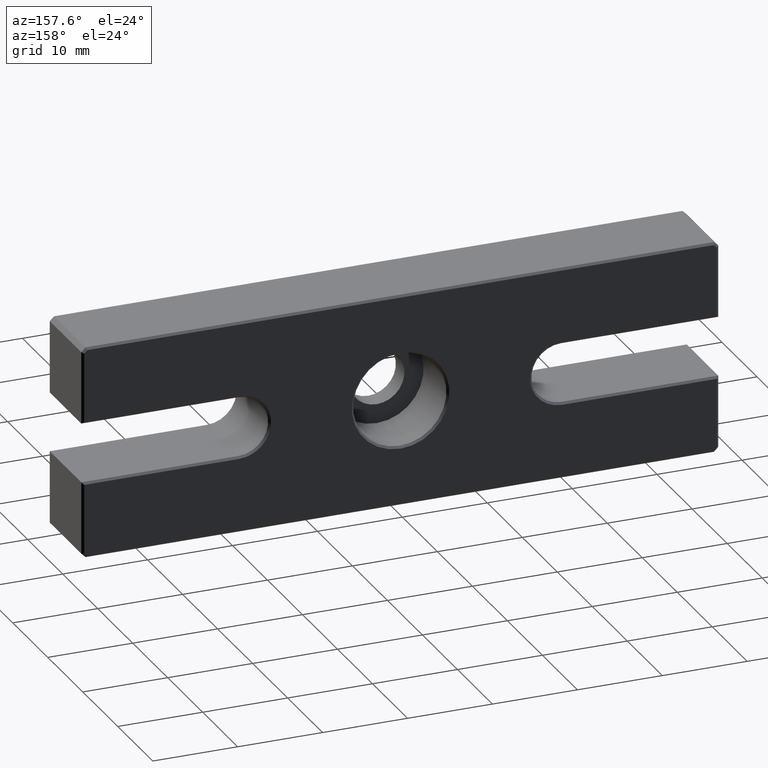
[diagram: clean part render]
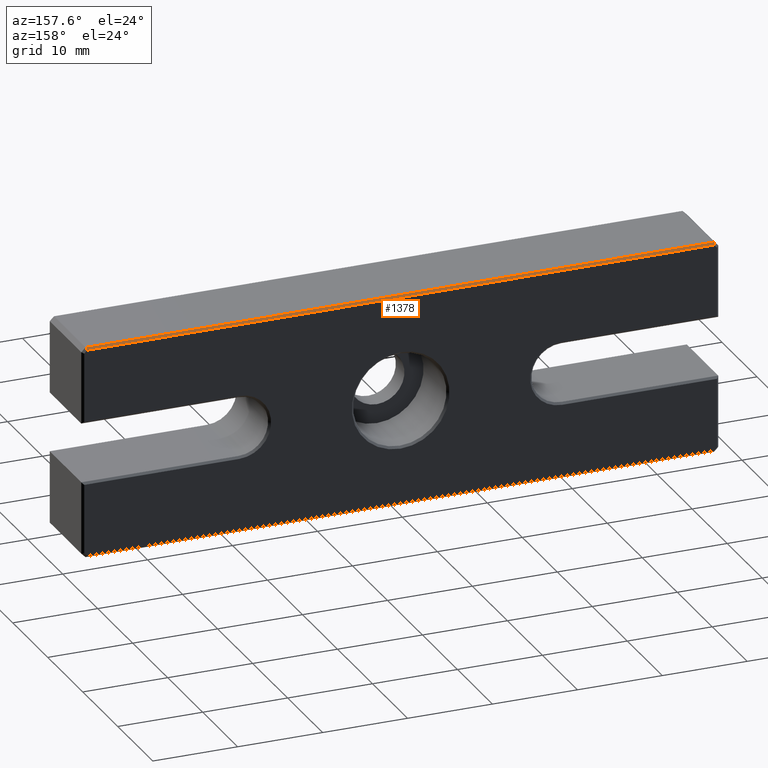
[diagram: same view with one face highlighted and labeled with its STEP entity id]
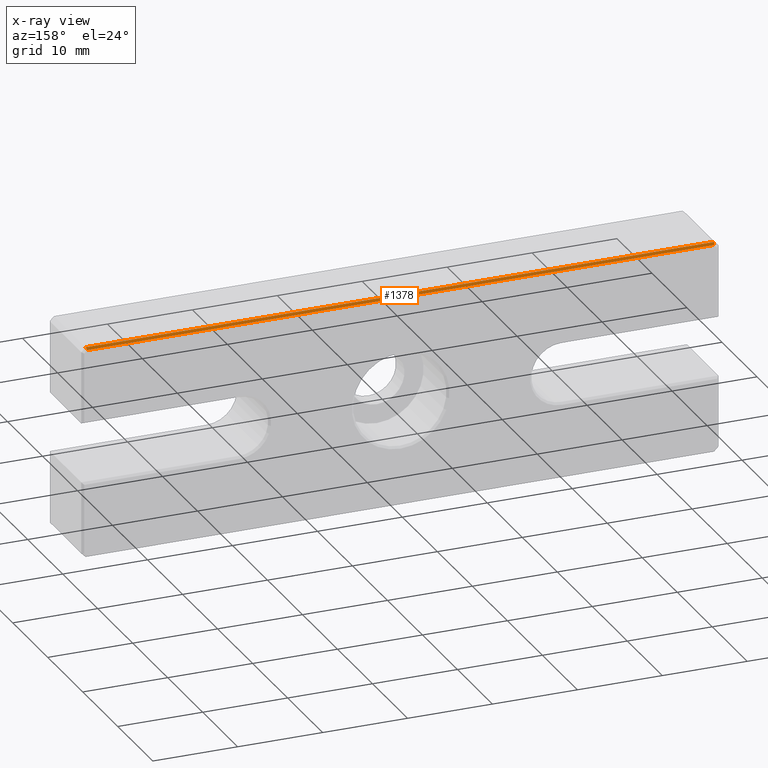
[diagram: x-ray of the same camera — body ghosted, the highlighted face saturated]
A machine part, auxiliary view. The second image highlights one B-rep face of the part: STEP entity #1378.
The next image is the same camera in x-ray: the body ghosted, the highlighted face saturated — about 0% of this face is hidden behind the body in this view.
In plain terms, the highlighted planar face has unit normal (0, 0.7071, 0.7071).
Its self-contained STEP definition (entity closure, byte-faithful):
#66 = DIRECTION ( 'NONE',  ( 1.000000000000000000, 0.000000000000000000, 0.000000000000000000 ) ) ;
#72 = ORIENTED_EDGE ( 'NONE', *, *, #701, .F. ) ;
#186 = CARTESIAN_POINT ( 'NONE',  ( -36.89644660940670917, 9.500000000000000000, 12.24999999999999645 ) ) ;
#287 = ORIENTED_EDGE ( 'NONE', *, *, #1293, .F. ) ;
#321 = VERTEX_POINT ( 'NONE', #683 ) ;
#338 = VECTOR ( 'NONE', #66, 1000.000000000000000 ) ;
#346 = DIRECTION ( 'NONE',  ( -0.2810846377148385478, -0.6785983445458432239, 0.6785983445458432239 ) ) ;
#435 = LINE ( 'NONE', #1507, #1341 ) ;
#438 = CARTESIAN_POINT ( 'NONE',  ( 36.99999999999999289, 9.500000000000000000, 12.24999999999999822 ) ) ;
#451 = EDGE_CURVE ( 'NONE', #986, #321, #1168, .T. ) ;
#477 = PLANE ( 'NONE',  #1049 ) ;
#489 = CARTESIAN_POINT ( 'NONE',  ( 0.000000000000000000, 9.500000000000000000, 12.24999999999999822 ) ) ;
#563 = CARTESIAN_POINT ( 'NONE',  ( 36.89644660940671628, 9.500000000000000000, 12.24999999999999822 ) ) ;
#658 = EDGE_LOOP ( 'NONE', ( #868, #287, #1094, #72 ) ) ;
#683 = CARTESIAN_POINT ( 'NONE',  ( -36.99999999999999289, 9.250000000000000000, 12.49999999999999822 ) ) ;
#701 = EDGE_CURVE ( 'NONE', #986, #1126, #1473, .T. ) ;
#838 = CARTESIAN_POINT ( 'NONE',  ( -36.99999999999999289, 9.250000000000000000, 12.49999999999999822 ) ) ;
#868 = ORIENTED_EDGE ( 'NONE', *, *, #451, .T. ) ;
#871 = VERTEX_POINT ( 'NONE', #941 ) ;
#938 = DIRECTION ( 'NONE',  ( -1.000000000000000000, 0.000000000000000000, 0.000000000000000000 ) ) ;
#941 = CARTESIAN_POINT ( 'NONE',  ( 36.99999999999999289, 9.250000000000000000, 12.49999999999999822 ) ) ;
#947 = DIRECTION ( 'NONE',  ( 0.000000000000000000, 0.7071067811865475727, 0.7071067811865475727 ) ) ;
#967 = VECTOR ( 'NONE', #346, 1000.000000000000000 ) ;
#986 = VERTEX_POINT ( 'NONE', #186 ) ;
#1032 = DIRECTION ( 'NONE',  ( 0.2810846377148105146, -0.6785983445458489971, 0.6785983445458489971 ) ) ;
#1049 = AXIS2_PLACEMENT_3D ( 'NONE', #489, #947, #1413 ) ;
#1069 = LINE ( 'NONE', #838, #1294 ) ;
#1094 = ORIENTED_EDGE ( 'NONE', *, *, #1153, .F. ) ;
#1126 = VERTEX_POINT ( 'NONE', #563 ) ;
#1153 = EDGE_CURVE ( 'NONE', #1126, #871, #435, .T. ) ;
#1168 = LINE ( 'NONE', #1397, #967 ) ;
#1171 = FACE_OUTER_BOUND ( 'NONE', #658, .T. ) ;
#1293 = EDGE_CURVE ( 'NONE', #871, #321, #1069, .T. ) ;
#1294 = VECTOR ( 'NONE', #938, 1000.000000000000000 ) ;
#1341 = VECTOR ( 'NONE', #1032, 1000.000000000000000 ) ;
#1378 = ADVANCED_FACE ( 'NONE', ( #1171 ), #477, .T. ) ;
#1397 = CARTESIAN_POINT ( 'NONE',  ( -38.27338191940783929, 6.175784100085117245, 15.57421589991488098 ) ) ;
#1413 = DIRECTION ( 'NONE',  ( -1.000000000000000000, 0.000000000000000000, 0.000000000000000000 ) ) ;
#1473 = LINE ( 'NONE', #438, #338 ) ;
#1507 = CARTESIAN_POINT ( 'NONE',  ( 33.98131099339187244, 16.53775994034016605, 5.212240059659831282 ) ) ;